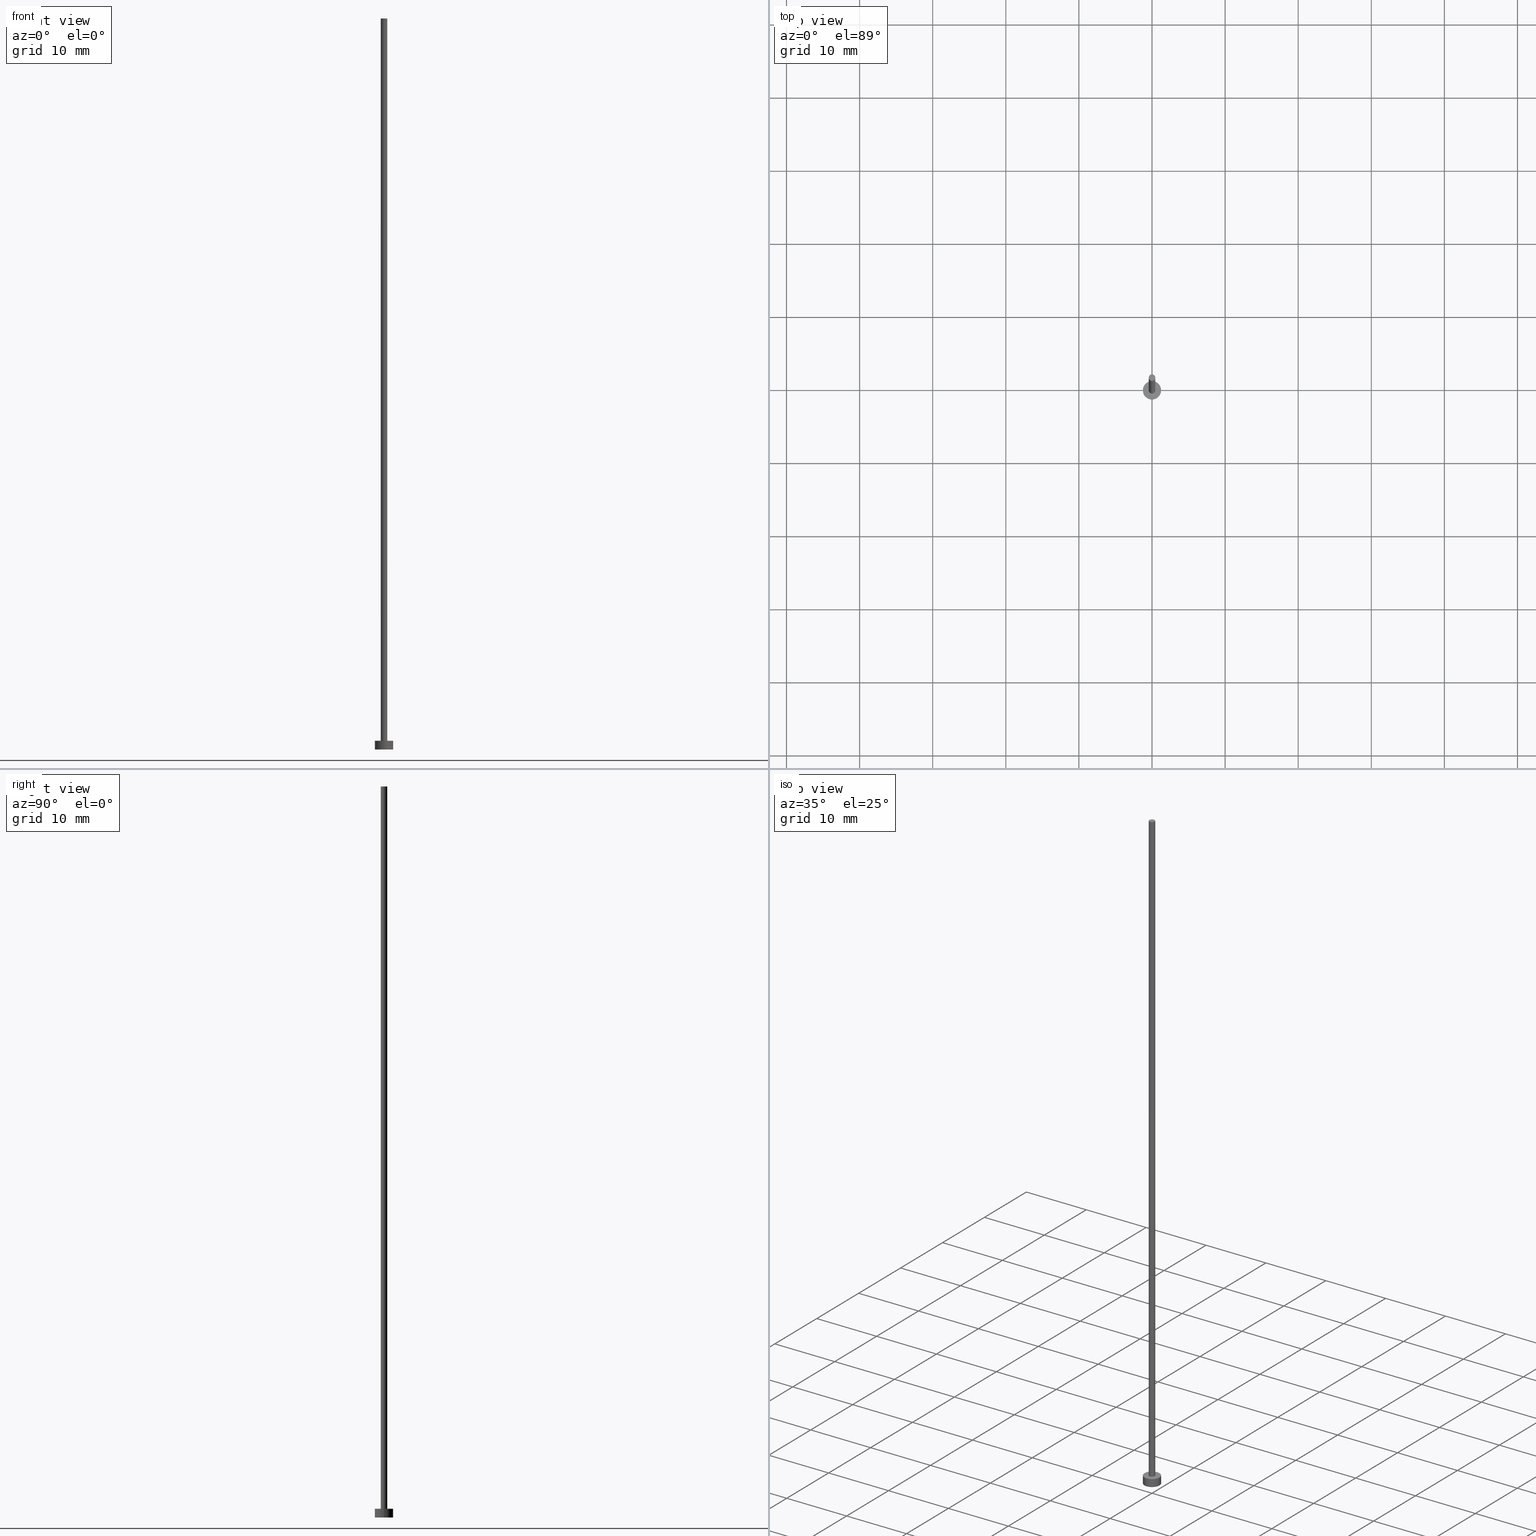
[diagram: canonical four-view strip — front | top / right | iso, engineering-drawing reading convention]
A machine part, canonical four-view strip (front | top / right | iso — engineering-drawing reading convention). The complete STEP part file that produces these views, byte-faithful:
ISO-10303-21;
HEADER;
FILE_DESCRIPTION (( 'STEP AP203' ),
    '1' );
FILE_NAME ('4761.STEP',
    '2026-02-06T12:44:15',
    ( '' ),
    ( '' ),
    'SwSTEP 2.0',
    'SolidWorks 2019',
    '' );
FILE_SCHEMA (( 'CONFIG_CONTROL_DESIGN' ));
ENDSEC;

DATA;
#1 = APPROVAL_DATE_TIME ( #3, #243 ) ;
#2 = PERSON_AND_ORGANIZATION ( #64, #30 ) ;
#3 = DATE_AND_TIME ( #219, #27 ) ;
#4 = ORIENTED_EDGE ( 'NONE', *, *, #217, .T. ) ;
#5 = COORDINATED_UNIVERSAL_TIME_OFFSET ( 1, 0, .AHEAD. ) ;
#6 = EDGE_LOOP ( 'NONE', ( #238, #28, #142, #70 ) ) ;
#7 = CIRCLE ( 'NONE', #18, 0.4500000000000000111 ) ;
#8 = APPROVAL_PERSON_ORGANIZATION ( #222, #243, #53 ) ;
#9 = ORIENTED_EDGE ( 'NONE', *, *, #108, .F. ) ;
#10 = EDGE_CURVE ( 'NONE', #221, #186, #96, .T. ) ;
#11 = FACE_OUTER_BOUND ( 'NONE', #90, .T. ) ;
#12 = AXIS2_PLACEMENT_3D ( 'NONE', #67, #138, #209 ) ;
#13 = PRODUCT_DEFINITION_FORMATION_WITH_SPECIFIED_SOURCE ( 'LIBOVOLN�', '', #109, .NOT_KNOWN. ) ;
#14 = CARTESIAN_POINT ( 'NONE',  ( 0.000000000000000000, 0.000000000000000000, 1.199999999999999956 ) ) ;
#15 = DIRECTION ( 'NONE',  ( -0.000000000000000000, -0.000000000000000000, -1.000000000000000000 ) ) ;
#16 = ORIENTED_EDGE ( 'NONE', *, *, #108, .T. ) ;
#17 = CIRCLE ( 'NONE', #37, 1.250000000000000000 ) ;
#18 = AXIS2_PLACEMENT_3D ( 'NONE', #213, #41, #25 ) ;
#19 = CARTESIAN_POINT ( 'NONE',  ( -1.250000000000000000, 0.000000000000000000, 1.199999999999999956 ) ) ;
#20 = CARTESIAN_POINT ( 'NONE',  ( 0.000000000000000000, 0.000000000000000000, 100.0000000000000000 ) ) ;
#21 = EDGE_CURVE ( 'NONE', #186, #221, #17, .T. ) ;
#22 = PLANE ( 'NONE',  #124 ) ;
#23 = CIRCLE ( 'NONE', #33, 1.250000000000000000 ) ;
#24 = ORIENTED_EDGE ( 'NONE', *, *, #139, .F. ) ;
#25 = DIRECTION ( 'NONE',  ( 1.000000000000000000, 0.000000000000000000, 0.000000000000000000 ) ) ;
#26 = PERSON_AND_ORGANIZATION_ROLE ( 'classification_officer' ) ;
#27 = LOCAL_TIME ( 13, 44, 15.00000000000000000, #5 ) ;
#28 = ORIENTED_EDGE ( 'NONE', *, *, #101, .T. ) ;
#29 = EDGE_LOOP ( 'NONE', ( #206, #9 ) ) ;
#30 = ORGANIZATION ( 'NEUR�EN�', 'NEUR�EN�', '' ) ;
#31 = FACE_OUTER_BOUND ( 'NONE', #6, .T. ) ;
#32 = DIRECTION ( 'NONE',  ( 0.000000000000000000, 0.000000000000000000, 1.000000000000000000 ) ) ;
#33 = AXIS2_PLACEMENT_3D ( 'NONE', #149, #244, #214 ) ;
#34 = CC_DESIGN_APPROVAL ( #223, ( #235 ) ) ;
#35 = DIRECTION ( 'NONE',  ( 1.000000000000000000, 0.000000000000000000, 0.000000000000000000 ) ) ;
#36 = ADVANCED_FACE ( 'NONE', ( #11 ), #94, .T. ) ;
#37 = AXIS2_PLACEMENT_3D ( 'NONE', #14, #32, #56 ) ;
#38 = DIRECTION ( 'NONE',  ( 1.000000000000000000, 0.000000000000000000, 0.000000000000000000 ) ) ;
#39 = CC_DESIGN_PERSON_AND_ORGANIZATION_ASSIGNMENT ( #155, #231, ( #109 ) ) ;
#40 = DIRECTION ( 'NONE',  ( -1.000000000000000000, 0.000000000000000000, 0.000000000000000000 ) ) ;
#41 = DIRECTION ( 'NONE',  ( 0.000000000000000000, 0.000000000000000000, 1.000000000000000000 ) ) ;
#42 = MANIFOLD_SOLID_BREP ( 'P�idat vysunut�m3', #239 ) ;
#43 = LINE ( 'NONE', #115, #132 ) ;
#44 = APPROVAL_ROLE ( '' ) ;
#45 = ORIENTED_EDGE ( 'NONE', *, *, #250, .T. ) ;
#46 = CALENDAR_DATE ( 2026, 6, 2 ) ;
#47 = VERTEX_POINT ( 'NONE', #170 ) ;
#48 = VECTOR ( 'NONE', #136, 1000.000000000000000 ) ;
#49 = PERSON_AND_ORGANIZATION ( #64, #30 ) ;
#50 = APPROVAL_ROLE ( '' ) ;
#51 = ORIENTED_EDGE ( 'NONE', *, *, #10, .T. ) ;
#52 = CARTESIAN_POINT ( 'NONE',  ( 0.000000000000000000, 0.000000000000000000, 1.199999999999999956 ) ) ;
#53 = APPROVAL_ROLE ( '' ) ;
#54 = ADVANCED_FACE ( 'NONE', ( #77 ), #106, .T. ) ;
#55 = VERTEX_POINT ( 'NONE', #246 ) ;
#56 = DIRECTION ( 'NONE',  ( 1.000000000000000000, 0.000000000000000000, 0.000000000000000000 ) ) ;
#57 = CARTESIAN_POINT ( 'NONE',  ( 0.000000000000000000, 0.000000000000000000, 1.199999999999999956 ) ) ;
#58 = LOCAL_TIME ( 13, 44, 15.00000000000000000, #216 ) ;
#59 = ADVANCED_FACE ( 'NONE', ( #31 ), #95, .T. ) ;
#60 = CARTESIAN_POINT ( 'NONE',  ( -0.4500000000000000111, 0.000000000000000000, 100.0000000000000000 ) ) ;
#61 =( NAMED_UNIT ( * ) PLANE_ANGLE_UNIT ( ) SI_UNIT ( $, .RADIAN. ) );
#62 = AXIS2_PLACEMENT_3D ( 'NONE', #20, #230, #38 ) ;
#63 = APPROVAL ( #204, 'NEUR�EN�' ) ;
#64 = PERSON ( 'NEUR�EN�', 'NEUR�EN�', 'NEUR�EN�', ('NEUR�EN�'), ('NEUR�EN�'), ('NEUR�EN�') ) ;
#65 = APPLICATION_PROTOCOL_DEFINITION ( 'international standard', 'config_control_design', 1994, #118 ) ;
#66 = CARTESIAN_POINT ( 'NONE',  ( 0.000000000000000000, 0.000000000000000000, 0.000000000000000000 ) ) ;
#67 = CARTESIAN_POINT ( 'NONE',  ( 0.000000000000000000, 0.000000000000000000, 1.199999999999999956 ) ) ;
#68 = APPROVAL_PERSON_ORGANIZATION ( #140, #63, #44 ) ;
#69 = DATE_AND_TIME ( #46, #195 ) ;
#70 = ORIENTED_EDGE ( 'NONE', *, *, #127, .F. ) ;
#71 = SECURITY_CLASSIFICATION_LEVEL ( 'unclassified' ) ;
#72 = CC_DESIGN_PERSON_AND_ORGANIZATION_ASSIGNMENT ( #179, #73, ( #200 ) ) ;
#73 = PERSON_AND_ORGANIZATION_ROLE ( 'creator' ) ;
#74 = DIRECTION ( 'NONE',  ( 1.000000000000000000, 0.000000000000000000, -0.000000000000000000 ) ) ;
#75 = DIRECTION ( 'NONE',  ( -0.000000000000000000, -0.000000000000000000, -1.000000000000000000 ) ) ;
#76 = UNCERTAINTY_MEASURE_WITH_UNIT (LENGTH_MEASURE( 1.000000000000000082E-05 ), #100, 'distance_accuracy_value', 'NONE');
#77 = FACE_OUTER_BOUND ( 'NONE', #160, .T. ) ;
#78 = CC_DESIGN_SECURITY_CLASSIFICATION ( #235, ( #13 ) ) ;
#79 = CARTESIAN_POINT ( 'NONE',  ( 0.000000000000000000, 0.000000000000000000, 0.000000000000000000 ) ) ;
#80 = ADVANCED_BREP_SHAPE_REPRESENTATION ( '4761', ( #42, #229 ), #143 ) ;
#81 = FACE_OUTER_BOUND ( 'NONE', #203, .T. ) ;
#82 = VECTOR ( 'NONE', #135, 1000.000000000000000 ) ;
#83 = VERTEX_POINT ( 'NONE', #150 ) ;
#84 = FACE_OUTER_BOUND ( 'NONE', #29, .T. ) ;
#85 = ADVANCED_FACE ( 'NONE', ( #225 ), #130, .T. ) ;
#86 = DIRECTION ( 'NONE',  ( 0.000000000000000000, 0.000000000000000000, 1.000000000000000000 ) ) ;
#87 = AXIS2_PLACEMENT_3D ( 'NONE', #248, #15, #169 ) ;
#88 = CALENDAR_DATE ( 2026, 6, 2 ) ;
#89 = PERSON_AND_ORGANIZATION ( #64, #30 ) ;
#90 = EDGE_LOOP ( 'NONE', ( #156, #148, #16, #123 ) ) ;
#91 = VERTEX_POINT ( 'NONE', #185 ) ;
#92 = ORIENTED_EDGE ( 'NONE', *, *, #184, .T. ) ;
#93 = AXIS2_PLACEMENT_3D ( 'NONE', #208, #97, #74 ) ;
#94 = CYLINDRICAL_SURFACE ( 'NONE', #157, 1.250000000000000000 ) ;
#95 = CYLINDRICAL_SURFACE ( 'NONE', #245, 0.4500000000000000111 ) ;
#96 = CIRCLE ( 'NONE', #129, 1.250000000000000000 ) ;
#97 = DIRECTION ( 'NONE',  ( 0.000000000000000000, 0.000000000000000000, 1.000000000000000000 ) ) ;
#98 = CARTESIAN_POINT ( 'NONE',  ( 0.000000000000000000, 0.000000000000000000, 0.000000000000000000 ) ) ;
#99 = LINE ( 'NONE', #112, #48 ) ;
#100 =( LENGTH_UNIT ( ) NAMED_UNIT ( * ) SI_UNIT ( .MILLI., .METRE. ) );
#101 = EDGE_CURVE ( 'NONE', #55, #91, #187, .T. ) ;
#102 = COORDINATED_UNIVERSAL_TIME_OFFSET ( 1, 0, .AHEAD. ) ;
#103 = PERSON_AND_ORGANIZATION_ROLE ( 'creator' ) ;
#104 = ORIENTED_EDGE ( 'NONE', *, *, #173, .F. ) ;
#105 = CC_DESIGN_PERSON_AND_ORGANIZATION_ASSIGNMENT ( #120, #103, ( #13 ) ) ;
#106 = CYLINDRICAL_SURFACE ( 'NONE', #87, 1.250000000000000000 ) ;
#107 = CARTESIAN_POINT ( 'NONE',  ( 0.000000000000000000, 0.000000000000000000, 100.0000000000000000 ) ) ;
#108 = EDGE_CURVE ( 'NONE', #83, #205, #218, .T. ) ;
#109 = PRODUCT ( '4761', '4761', '', ( #193 ) ) ;
#110 = FACE_BOUND ( 'NONE', #182, .T. ) ;
#111 = DIRECTION ( 'NONE',  ( 0.000000000000000000, 0.000000000000000000, 1.000000000000000000 ) ) ;
#112 = CARTESIAN_POINT ( 'NONE',  ( 1.250000000000000000, 1.530808498934191571E-16, 1.199999999999999956 ) ) ;
#113 = AXIS2_PLACEMENT_3D ( 'NONE', #194, #111, #192 ) ;
#114 = DIRECTION ( 'NONE',  ( 0.000000000000000000, 0.000000000000000000, 1.000000000000000000 ) ) ;
#115 = CARTESIAN_POINT ( 'NONE',  ( -0.4500000000000000111, 0.000000000000000000, 100.0000000000000000 ) ) ;
#116 = CC_DESIGN_PERSON_AND_ORGANIZATION_ASSIGNMENT ( #2, #181, ( #13 ) ) ;
#117 = CALENDAR_DATE ( 2026, 6, 2 ) ;
#118 = APPLICATION_CONTEXT ( 'configuration controlled 3d designs of mechanical parts and assemblies' ) ;
#119 = APPROVAL_DATE_TIME ( #202, #223 ) ;
#120 = PERSON_AND_ORGANIZATION ( #64, #30 ) ;
#121 = ORIENTED_EDGE ( 'NONE', *, *, #188, .F. ) ;
#122 = EDGE_CURVE ( 'NONE', #205, #83, #23, .T. ) ;
#123 = ORIENTED_EDGE ( 'NONE', *, *, #217, .F. ) ;
#124 = AXIS2_PLACEMENT_3D ( 'NONE', #66, #255, #133 ) ;
#125 = DIRECTION ( 'NONE',  ( -1.000000000000000000, 0.000000000000000000, 0.000000000000000000 ) ) ;
#126 = ORIENTED_EDGE ( 'NONE', *, *, #101, .F. ) ;
#127 = EDGE_CURVE ( 'NONE', #201, #47, #43, .T. ) ;
#128 = DIRECTION ( 'NONE',  ( -1.000000000000000000, 0.000000000000000000, 0.000000000000000000 ) ) ;
#129 = AXIS2_PLACEMENT_3D ( 'NONE', #52, #207, #35 ) ;
#130 = PLANE ( 'NONE',  #93 ) ;
#131 = DIRECTION ( 'NONE',  ( 1.000000000000000000, 0.000000000000000000, 0.000000000000000000 ) ) ;
#132 = VECTOR ( 'NONE', #234, 1000.000000000000000 ) ;
#133 = DIRECTION ( 'NONE',  ( 1.000000000000000000, 0.000000000000000000, -0.000000000000000000 ) ) ;
#134 = CARTESIAN_POINT ( 'NONE',  ( 1.250000000000000000, 1.530808498934191571E-16, 1.199999999999999956 ) ) ;
#135 = DIRECTION ( 'NONE',  ( -0.000000000000000000, -0.000000000000000000, -1.000000000000000000 ) ) ;
#136 = DIRECTION ( 'NONE',  ( -0.000000000000000000, -0.000000000000000000, -1.000000000000000000 ) ) ;
#137 = AXIS2_PLACEMENT_3D ( 'NONE', #228, #152, #40 ) ;
#138 = DIRECTION ( 'NONE',  ( 0.000000000000000000, 0.000000000000000000, 1.000000000000000000 ) ) ;
#139 = EDGE_CURVE ( 'NONE', #47, #91, #162, .T. ) ;
#140 = PERSON_AND_ORGANIZATION ( #64, #30 ) ;
#141 = APPROVAL_STATUS ( 'not_yet_approved' ) ;
#142 = ORIENTED_EDGE ( 'NONE', *, *, #173, .T. ) ;
#143 =( GEOMETRIC_REPRESENTATION_CONTEXT ( 3 ) GLOBAL_UNCERTAINTY_ASSIGNED_CONTEXT ( ( #76 ) ) GLOBAL_UNIT_ASSIGNED_CONTEXT ( ( #100, #61, #252 ) ) REPRESENTATION_CONTEXT ( 'NONE', 'WORKASPACE' ) );
#144 = COORDINATED_UNIVERSAL_TIME_OFFSET ( 1, 0, .AHEAD. ) ;
#145 = ORIENTED_EDGE ( 'NONE', *, *, #127, .T. ) ;
#146 = ADVANCED_FACE ( 'NONE', ( #110, #81 ), #176, .T. ) ;
#147 = CALENDAR_DATE ( 2026, 6, 2 ) ;
#148 = ORIENTED_EDGE ( 'NONE', *, *, #188, .T. ) ;
#149 = CARTESIAN_POINT ( 'NONE',  ( 0.000000000000000000, 0.000000000000000000, 0.000000000000000000 ) ) ;
#150 = CARTESIAN_POINT ( 'NONE',  ( 1.250000000000000000, 1.530808498934191571E-16, 0.000000000000000000 ) ) ;
#151 = CC_DESIGN_APPROVAL ( #63, ( #13 ) ) ;
#152 = DIRECTION ( 'NONE',  ( -0.000000000000000000, -0.000000000000000000, -1.000000000000000000 ) ) ;
#153 = CC_DESIGN_DATE_AND_TIME_ASSIGNMENT ( #159, #199, ( #235 ) ) ;
#154 = APPROVAL_PERSON_ORGANIZATION ( #49, #223, #50 ) ;
#155 = PERSON_AND_ORGANIZATION ( #64, #30 ) ;
#156 = ORIENTED_EDGE ( 'NONE', *, *, #21, .F. ) ;
#157 = AXIS2_PLACEMENT_3D ( 'NONE', #57, #227, #125 ) ;
#158 = APPROVAL_DATE_TIME ( #69, #63 ) ;
#159 = DATE_AND_TIME ( #117, #190 ) ;
#160 = EDGE_LOOP ( 'NONE', ( #121, #161, #4, #180 ) ) ;
#161 = ORIENTED_EDGE ( 'NONE', *, *, #10, .F. ) ;
#162 = CIRCLE ( 'NONE', #12, 0.4500000000000000111 ) ;
#163 = APPLICATION_CONTEXT ( 'configuration controlled 3d designs of mechanical parts and assemblies' ) ;
#164 = LOCAL_TIME ( 13, 44, 15.00000000000000000, #102 ) ;
#165 = PRODUCT_DEFINITION_SHAPE ( 'NONE', 'NONE',  #200 ) ;
#166 = ADVANCED_FACE ( 'NONE', ( #84 ), #22, .F. ) ;
#167 = DIRECTION ( 'NONE',  ( 1.000000000000000000, 0.000000000000000000, 0.000000000000000000 ) ) ;
#168 = CIRCLE ( 'NONE', #189, 0.4500000000000000111 ) ;
#169 = DIRECTION ( 'NONE',  ( -1.000000000000000000, 0.000000000000000000, 0.000000000000000000 ) ) ;
#170 = CARTESIAN_POINT ( 'NONE',  ( -0.4500000000000000111, 0.000000000000000000, 1.199999999999999956 ) ) ;
#171 = CARTESIAN_POINT ( 'NONE',  ( 0.4500000000000000111, 5.510910596163088939E-17, 100.0000000000000000 ) ) ;
#172 = DIRECTION ( 'NONE',  ( 1.000000000000000000, 0.000000000000000000, 0.000000000000000000 ) ) ;
#173 = EDGE_CURVE ( 'NONE', #91, #47, #168, .T. ) ;
#174 = LINE ( 'NONE', #253, #82 ) ;
#175 = CIRCLE ( 'NONE', #62, 0.4500000000000000111 ) ;
#176 = PLANE ( 'NONE',  #113 ) ;
#177 = VECTOR ( 'NONE', #249, 1000.000000000000000 ) ;
#178 = EDGE_LOOP ( 'NONE', ( #92, #45 ) ) ;
#179 = PERSON_AND_ORGANIZATION ( #64, #30 ) ;
#180 = ORIENTED_EDGE ( 'NONE', *, *, #122, .T. ) ;
#181 = PERSON_AND_ORGANIZATION_ROLE ( 'design_supplier' ) ;
#182 = EDGE_LOOP ( 'NONE', ( #24, #104 ) ) ;
#183 = ORIENTED_EDGE ( 'NONE', *, *, #139, .T. ) ;
#184 = EDGE_CURVE ( 'NONE', #201, #55, #175, .T. ) ;
#185 = CARTESIAN_POINT ( 'NONE',  ( 0.4500000000000000111, 5.510910596163088939E-17, 1.199999999999999956 ) ) ;
#186 = VERTEX_POINT ( 'NONE', #134 ) ;
#187 = LINE ( 'NONE', #171, #177 ) ;
#188 = EDGE_CURVE ( 'NONE', #186, #83, #99, .T. ) ;
#189 = AXIS2_PLACEMENT_3D ( 'NONE', #191, #114, #131 ) ;
#190 = LOCAL_TIME ( 13, 44, 15.00000000000000000, #144 ) ;
#191 = CARTESIAN_POINT ( 'NONE',  ( 0.000000000000000000, 0.000000000000000000, 1.199999999999999956 ) ) ;
#192 = DIRECTION ( 'NONE',  ( 1.000000000000000000, 0.000000000000000000, -0.000000000000000000 ) ) ;
#193 = MECHANICAL_CONTEXT ( 'NONE', #163, 'mechanical' ) ;
#194 = CARTESIAN_POINT ( 'NONE',  ( 0.000000000000000000, 0.000000000000000000, 1.199999999999999956 ) ) ;
#195 = LOCAL_TIME ( 13, 44, 15.00000000000000000, #198 ) ;
#196 = FACE_OUTER_BOUND ( 'NONE', #241, .T. ) ;
#197 = CC_DESIGN_DATE_AND_TIME_ASSIGNMENT ( #215, #236, ( #200 ) ) ;
#198 = COORDINATED_UNIVERSAL_TIME_OFFSET ( 1, 0, .AHEAD. ) ;
#199 = DATE_TIME_ROLE ( 'classification_date' ) ;
#200 = PRODUCT_DEFINITION ( 'NEZN�M�', '', #13, #254 ) ;
#201 = VERTEX_POINT ( 'NONE', #60 ) ;
#202 = DATE_AND_TIME ( #147, #58 ) ;
#203 = EDGE_LOOP ( 'NONE', ( #51, #237 ) ) ;
#204 = APPROVAL_STATUS ( 'not_yet_approved' ) ;
#205 = VERTEX_POINT ( 'NONE', #210 ) ;
#206 = ORIENTED_EDGE ( 'NONE', *, *, #122, .F. ) ;
#207 = DIRECTION ( 'NONE',  ( 0.000000000000000000, 0.000000000000000000, 1.000000000000000000 ) ) ;
#208 = CARTESIAN_POINT ( 'NONE',  ( 0.000000000000000000, 0.000000000000000000, 100.0000000000000000 ) ) ;
#209 = DIRECTION ( 'NONE',  ( 1.000000000000000000, 0.000000000000000000, 0.000000000000000000 ) ) ;
#210 = CARTESIAN_POINT ( 'NONE',  ( -1.250000000000000000, 0.000000000000000000, 0.000000000000000000 ) ) ;
#211 = CYLINDRICAL_SURFACE ( 'NONE', #137, 0.4500000000000000111 ) ;
#212 = AXIS2_PLACEMENT_3D ( 'NONE', #79, #251, #167 ) ;
#213 = CARTESIAN_POINT ( 'NONE',  ( 0.000000000000000000, 0.000000000000000000, 100.0000000000000000 ) ) ;
#214 = DIRECTION ( 'NONE',  ( 1.000000000000000000, 0.000000000000000000, 0.000000000000000000 ) ) ;
#215 = DATE_AND_TIME ( #88, #164 ) ;
#216 = COORDINATED_UNIVERSAL_TIME_OFFSET ( 1, 0, .AHEAD. ) ;
#217 = EDGE_CURVE ( 'NONE', #221, #205, #174, .T. ) ;
#218 = CIRCLE ( 'NONE', #212, 1.250000000000000000 ) ;
#219 = CALENDAR_DATE ( 2026, 6, 2 ) ;
#220 = SHAPE_DEFINITION_REPRESENTATION ( #165, #80 ) ;
#221 = VERTEX_POINT ( 'NONE', #19 ) ;
#222 = PERSON_AND_ORGANIZATION ( #64, #30 ) ;
#223 = APPROVAL ( #141, 'NEUR�EN�' ) ;
#224 = PRODUCT_RELATED_PRODUCT_CATEGORY ( 'detail', '', ( #109 ) ) ;
#225 = FACE_OUTER_BOUND ( 'NONE', #178, .T. ) ;
#226 = CC_DESIGN_APPROVAL ( #243, ( #200 ) ) ;
#227 = DIRECTION ( 'NONE',  ( -0.000000000000000000, -0.000000000000000000, -1.000000000000000000 ) ) ;
#228 = CARTESIAN_POINT ( 'NONE',  ( 0.000000000000000000, 0.000000000000000000, 100.0000000000000000 ) ) ;
#229 = AXIS2_PLACEMENT_3D ( 'NONE', #98, #86, #172 ) ;
#230 = DIRECTION ( 'NONE',  ( 0.000000000000000000, 0.000000000000000000, 1.000000000000000000 ) ) ;
#231 = PERSON_AND_ORGANIZATION_ROLE ( 'design_owner' ) ;
#232 = ADVANCED_FACE ( 'NONE', ( #196 ), #211, .T. ) ;
#233 = APPLICATION_PROTOCOL_DEFINITION ( 'international standard', 'config_control_design', 1994, #163 ) ;
#234 = DIRECTION ( 'NONE',  ( -0.000000000000000000, -0.000000000000000000, -1.000000000000000000 ) ) ;
#235 = SECURITY_CLASSIFICATION ( '', '', #71 ) ;
#236 = DATE_TIME_ROLE ( 'creation_date' ) ;
#237 = ORIENTED_EDGE ( 'NONE', *, *, #21, .T. ) ;
#238 = ORIENTED_EDGE ( 'NONE', *, *, #250, .F. ) ;
#239 = CLOSED_SHELL ( 'NONE', ( #59, #36, #54, #146, #166, #232, #85 ) ) ;
#240 = ORIENTED_EDGE ( 'NONE', *, *, #184, .F. ) ;
#241 = EDGE_LOOP ( 'NONE', ( #126, #240, #145, #183 ) ) ;
#242 = APPROVAL_STATUS ( 'not_yet_approved' ) ;
#243 = APPROVAL ( #242, 'NEUR�EN�' ) ;
#244 = DIRECTION ( 'NONE',  ( 0.000000000000000000, 0.000000000000000000, 1.000000000000000000 ) ) ;
#245 = AXIS2_PLACEMENT_3D ( 'NONE', #107, #75, #128 ) ;
#246 = CARTESIAN_POINT ( 'NONE',  ( 0.4500000000000000111, 5.510910596163088939E-17, 100.0000000000000000 ) ) ;
#247 = CC_DESIGN_PERSON_AND_ORGANIZATION_ASSIGNMENT ( #89, #26, ( #235 ) ) ;
#248 = CARTESIAN_POINT ( 'NONE',  ( 0.000000000000000000, 0.000000000000000000, 1.199999999999999956 ) ) ;
#249 = DIRECTION ( 'NONE',  ( -0.000000000000000000, -0.000000000000000000, -1.000000000000000000 ) ) ;
#250 = EDGE_CURVE ( 'NONE', #55, #201, #7, .T. ) ;
#251 = DIRECTION ( 'NONE',  ( 0.000000000000000000, 0.000000000000000000, 1.000000000000000000 ) ) ;
#252 =( NAMED_UNIT ( * ) SI_UNIT ( $, .STERADIAN. ) SOLID_ANGLE_UNIT ( ) );
#253 = CARTESIAN_POINT ( 'NONE',  ( -1.250000000000000000, 0.000000000000000000, 1.199999999999999956 ) ) ;
#254 = DESIGN_CONTEXT ( 'detailed design', #118, 'design' ) ;
#255 = DIRECTION ( 'NONE',  ( 0.000000000000000000, 0.000000000000000000, 1.000000000000000000 ) ) ;
ENDSEC;
END-ISO-10303-21;
